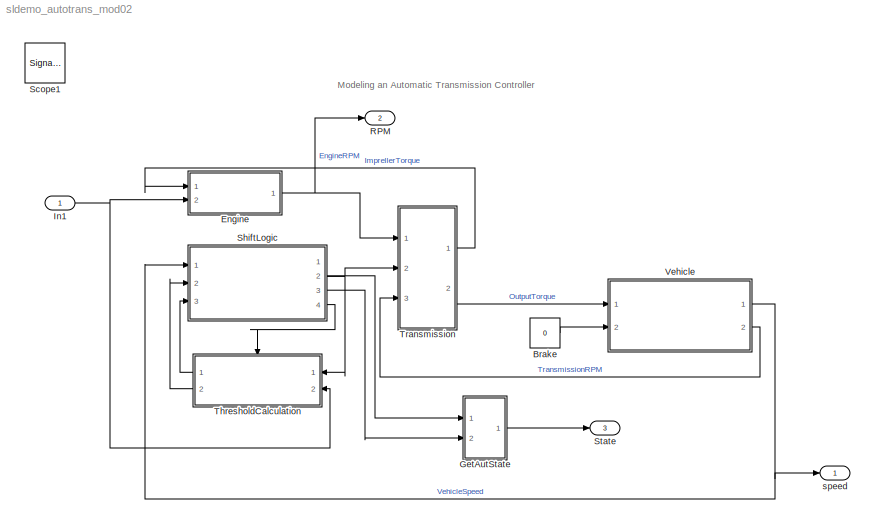
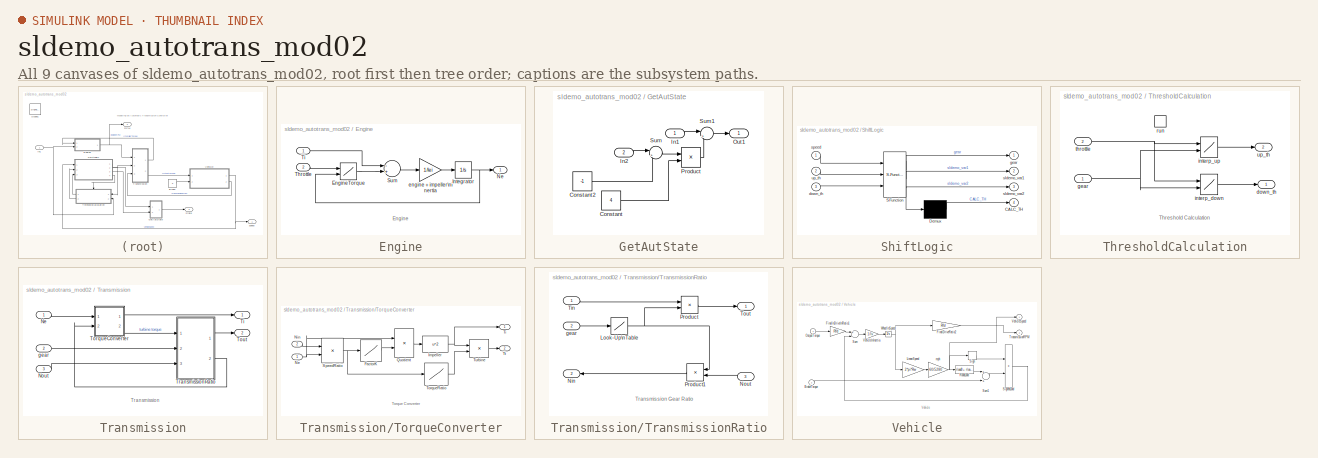
[diagram: thumbnail index - all 9 canvases of the model, root first then tree order]
MODEL sldemo_autotrans_mod02
KIND model
WORKSPACE source: MATLAB code (in-file)
WORKSPACE code: load sldemo_autotrans_data; %load initial conditions and other necessary data
BLOCK [Constant] Brake
  SID = 83
  Value = 0
BLOCK [SubSystem] Engine
  FunctionWithSeparateData = off
  MaskHideContents = off
  MinAlgLoopOccurrences = off
  Opaque = off
  Ports = [2, 1]
  PropExecContextOutsideSubsystem = off
  RTWSystemCode = Auto
  RequestExecContextInheritance = off
  SID = 1
BLOCK [Lookup2D] Engine/EngineTorque
  ColumnIndex = nevec
  RowIndex = thvec
  SID = 4
  SaturateOnIntegerOverflow = off
  Table = emap
BLOCK [Integrator] Engine/Integrator
  InitialCondition = 1000
  LimitOutput = on
  LowerSaturationLimit = 600
  Ports = [1, 1]
  SID = 5
  UpperSaturationLimit = 6000
  ZeroCross = off
BLOCK [Outport] Engine/Ne
  IconDisplay = Port number
  InitialOutput = 0
  SID = 8
BLOCK [Sum] Engine/Sum
  Inputs = -+
  Ports = [2, 1]
  SID = 6
BLOCK [Inport] Engine/Throttle
  IconDisplay = Port number
  Port = 2
  SID = 3
BLOCK [Inport] Engine/Ti
  IconDisplay = Port number
  SID = 2
BLOCK [Gain] Engine/engine + impeller\ninertia
  Gain = 1/Iei
  SID = 7
BLOCK [SubSystem] GetAutState
  FunctionWithSeparateData = off
  MaskHideContents = off
  MinAlgLoopOccurrences = off
  Opaque = off
  Ports = [2, 1]
  PropExecContextOutsideSubsystem = off
  RTWSystemCode = Auto
  RequestExecContextInheritance = off
  SID = 92
BLOCK [Constant] GetAutState/Constant
  SID = 86
  Value = 4
BLOCK [Constant] GetAutState/Constant2
  SID = 88
  Value = -1
BLOCK [Inport] GetAutState/In1
  IconDisplay = Port number
  SID = 93
BLOCK [Inport] GetAutState/In2
  IconDisplay = Port number
  Port = 2
  SID = 95
BLOCK [Outport] GetAutState/Out1
  IconDisplay = Port number
  SID = 94
BLOCK [Product] GetAutState/Product
  InputSameDT = off
  OutDataTypeStr = Inherit: Inherit via internal rule
  Ports = [2, 1]
  SID = 91
  SaturateOnIntegerOverflow = off
BLOCK [Sum] GetAutState/Sum
  IconShape = round
  InputSameDT = off
  Inputs = |++
  OutDataTypeStr = Inherit: Inherit via internal rule
  Ports = [2, 1]
  SID = 89
  SaturateOnIntegerOverflow = off
BLOCK [Sum] GetAutState/Sum1
  IconShape = round
  InputSameDT = off
  Inputs = |++
  OutDataTypeStr = Inherit: Inherit via internal rule
  Ports = [2, 1]
  SID = 90
  SaturateOnIntegerOverflow = off
BLOCK [Inport] In1
  IconDisplay = Port number
  SID = 84
BLOCK [Outport] RPM
  IconDisplay = Port number
  Port = 2
  SID = 79
BLOCK [SignalViewerScope] Scope1
  DataFormat = Array
  IOType = viewer
  MaxDataPoints = 7500
  NumInputPorts = 1
  Ports = []
  RefreshTime = 0.035000
  SID = 67
  ShowDataMarkers = off
  ShowLegends = off
  TimeRange = 30
  YMax = 5000
  YMin = 1000
BLOCK [SubSystem] ShiftLogic
  FunctionWithSeparateData = off
  MaskDescription = Stateflow diagram
  MaskDisplay = plot(sf('Private','sfblk','xIcon'),sf('Private','sfblk','yIcon'));text(0.5,0,sf('Private', 'sfblk', 'tIcon'),'HorizontalAl','Center','VerticalAl','Bottom');
  MaskHideContents = off
  MaskIconFrame = off
  MaskIconOpaque = off
  MaskIconRotate = none
  MaskIconUnits = autoscale
  MaskPortRotate = default
  MaskSelfModifiable = on
  MaskType = Stateflow
  MinAlgLoopOccurrences = off
  Opaque = off
  PermitHierarchicalResolution = ExplicitOnly
  Ports = [3, 4]
  PropExecContextOutsideSubsystem = off
  RTWSystemCode = Auto
  RequestExecContextInheritance = off
  SID = 16
  TreatAsAtomicUnit = on
BLOCK [Demux] ShiftLogic/ Demux 
  Outputs = 1
  Ports = [1, 1]
  SID = 16::13
BLOCK [S-Function] ShiftLogic/ SFunction 
  EnableBusSupport = on
  FunctionName = sf_sfun
  Parameters = TWAIT
  PortCounts = [3 4]
  Ports = [3, 4]
  SID = 16::12
  Tag = Stateflow S-Function sldemo_autotrans_mod02 1
BLOCK [Outport] ShiftLogic/CALC_TH
  IconDisplay = Port number
  Port = 4
  SID = 16::7
BLOCK [Inport] ShiftLogic/down_th
  IconDisplay = Port number
  Port = 3
  SID = 16::3
BLOCK [Outport] ShiftLogic/gear
  IconDisplay = Port number
  SID = 16::6
BLOCK [Outport] ShiftLogic/sldemo_var1
  IconDisplay = Port number
  Port = 2
  SID = 16::16
BLOCK [Outport] ShiftLogic/sldemo_var2
  IconDisplay = Port number
  Port = 3
  SID = 16::17
BLOCK [Inport] ShiftLogic/speed
  IconDisplay = Port number
  SID = 16::1
BLOCK [Inport] ShiftLogic/up_th
  IconDisplay = Port number
  Port = 2
  SID = 16::2
BLOCK [Outport] State
  IconDisplay = Port number
  Port = 3
  SID = 81
BLOCK [SubSystem] ThresholdCalculation
  FunctionWithSeparateData = off
  MaskHideContents = off
  MinAlgLoopOccurrences = off
  Opaque = off
  Ports = [2, 2, 0, 1]
  PropExecContextOutsideSubsystem = off
  RTWSystemCode = Auto
  RequestExecContextInheritance = off
  SID = 17
  TreatAsAtomicUnit = on
BLOCK [Outport] ThresholdCalculation/down_th
  IconDisplay = Port number
  SID = 23
BLOCK [Inport] ThresholdCalculation/gear
  IconDisplay = Port number
  SID = 18
BLOCK [Lookup2D] ThresholdCalculation/interp_down
  ColumnIndex = [1:4]
  InputSameDT = off
  LockScale = on
  OutDataTypeStr = double
  RowIndex = downth
  SID = 21
  SaturateOnIntegerOverflow = off
  Table = downtab
BLOCK [Lookup2D] ThresholdCalculation/interp_up
  ColumnIndex = [1:4]
  InputSameDT = off
  LockScale = on
  OutDataTypeStr = double
  RowIndex = upth
  SID = 22
  SaturateOnIntegerOverflow = off
  Table = uptab
BLOCK [TriggerPort] ThresholdCalculation/run
  Ports = []
  SID = 20
  TriggerType = function-call
  ZeroCross = off
BLOCK [Inport] ThresholdCalculation/throttle
  IconDisplay = Port number
  Port = 2
  SID = 19
BLOCK [Outport] ThresholdCalculation/up_th
  IconDisplay = Port number
  Port = 2
  SID = 24
BLOCK [SubSystem] Transmission
  FunctionWithSeparateData = off
  MaskHideContents = off
  MinAlgLoopOccurrences = off
  Opaque = off
  Ports = [3, 2]
  PropExecContextOutsideSubsystem = off
  RTWSystemCode = Auto
  RequestExecContextInheritance = off
  SID = 25
BLOCK [Inport] Transmission/Ne
  IconDisplay = Port number
  SID = 26
BLOCK [Inport] Transmission/Nout
  IconDisplay = Port number
  Port = 3
  SID = 28
BLOCK [Outport] Transmission/Ti
  IconDisplay = Port number
  InitialOutput = 0
  SID = 49
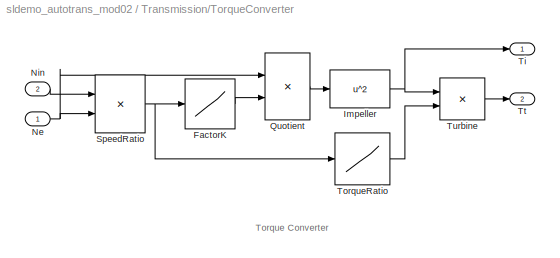
BLOCK [SubSystem] Transmission/TorqueConverter
  FunctionWithSeparateData = off
  MaskCallbackString = ||
  MaskDescription = torque converter
  MaskDisplay = plot([cos([90:10:450]*pi/180),.63*cos([90:10:450]*pi/180),.63*cos([90:10:240]*pi/180),cos([240:10:300]*pi/180),.63*cos([300]*pi/180)],[sin([90:10:450]*pi/180),.63*sin([90:10:450]*pi/180)+.1,.63*sin([90:10:240]*pi/180)+.1,sin([240:10:300]*pi/180),.63*sin([300]*pi/180)+.1])
  MaskEnableString = on,on,on
  MaskHelp = Torque converter input and output torques are computed as a function of the input and output speeds
  MaskHideContents = off
  MaskIconFrame = on
  MaskIconOpaque = on
  MaskIconRotate = none
  MaskIconUnits = autoscale
  MaskPortRotate = default
  MaskPromptString = speed ratio | K factor | torque ratio
  MaskStyleString = edit,edit,edit
  MaskToolTipString = on,on,on
  MaskTunableValueString = on,on,on
  MaskType = torque converter
  MaskValueString = converter_data(:,1)|converter_data(:,2)|converter_data(:,3)
  MaskVariables = speedratio=@1;Kfactor=@2;Torkratio=@3;
  MaskVisibilityString = on,on,on
  MinAlgLoopOccurrences = off
  Opaque = off
  Ports = [2, 2]
  PropExecContextOutsideSubsystem = off
  RTWSystemCode = Auto
  RequestExecContextInheritance = off
  SID = 29
  ShowPortLabels = none
BLOCK [Lookup] Transmission/TorqueConverter/FactorK
  InputValues = speedratio
  SID = 32
  Table = Kfactor
BLOCK [Fcn] Transmission/TorqueConverter/Impeller
  Expr = u^2
  SID = 33
BLOCK [Inport] Transmission/TorqueConverter/Ne
  IconDisplay = Port number
  SID = 30
BLOCK [Inport] Transmission/TorqueConverter/Nin
  IconDisplay = Port number
  Port = 2
  SID = 31
BLOCK [Product] Transmission/TorqueConverter/Quotient
  Inputs = */
  Ports = [2, 1]
  RndMeth = Floor
  SID = 34
BLOCK [Product] Transmission/TorqueConverter/SpeedRatio
  Inputs = */
  Ports = [2, 1]
  RndMeth = Floor
  SID = 35
BLOCK [Outport] Transmission/TorqueConverter/Ti
  IconDisplay = Port number
  InitialOutput = 0
  SID = 38
BLOCK [Lookup] Transmission/TorqueConverter/TorqueRatio
  InputValues = speedratio
  SID = 36
  Table = Torkratio
BLOCK [Outport] Transmission/TorqueConverter/Tt
  IconDisplay = Port number
  InitialOutput = 0
  Port = 2
  SID = 39
BLOCK [Product] Transmission/TorqueConverter/Turbine
  Ports = [2, 1]
  RndMeth = Floor
  SID = 37
BLOCK [Outport] Transmission/Tout
  IconDisplay = Port number
  InitialOutput = 0
  Port = 2
  SID = 50
BLOCK [SubSystem] Transmission/TransmissionRatio
  FunctionWithSeparateData = off
  MaskHideContents = off
  MinAlgLoopOccurrences = off
  Opaque = off
  Ports = [3, 2]
  PropExecContextOutsideSubsystem = off
  RTWSystemCode = Auto
  RequestExecContextInheritance = off
  SID = 40
BLOCK [Lookup] Transmission/TransmissionRatio/Look-Up\nTable
  InputValues = [1 2 3 4]
  LockScale = on
  OutDataTypeStr = double
  SID = 44
  Table = [2.393 1.450 1.000 0.677]
BLOCK [Outport] Transmission/TransmissionRatio/Nin
  IconDisplay = Port number
  InitialOutput = 0
  Port = 2
  SID = 48
BLOCK [Inport] Transmission/TransmissionRatio/Nout
  IconDisplay = Port number
  Port = 3
  SID = 43
BLOCK [Product] Transmission/TransmissionRatio/Product
  Ports = [2, 1]
  RndMeth = Floor
  SID = 45
BLOCK [Product] Transmission/TransmissionRatio/Product1
  Ports = [2, 1]
  RndMeth = Floor
  SID = 46
BLOCK [Inport] Transmission/TransmissionRatio/Tin
  IconDisplay = Port number
  SID = 41
BLOCK [Outport] Transmission/TransmissionRatio/Tout
  IconDisplay = Port number
  InitialOutput = 0
  SID = 47
BLOCK [Inport] Transmission/TransmissionRatio/gear
  IconDisplay = Port number
  Port = 2
  SID = 42
BLOCK [Inport] Transmission/gear
  IconDisplay = Port number
  Port = 2
  SID = 27
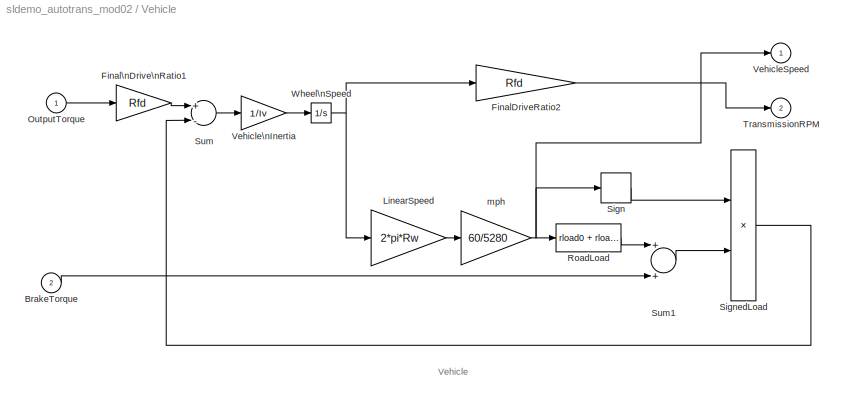
BLOCK [SubSystem] Vehicle
  FunctionWithSeparateData = off
  MaskCallbackString = |||||
  MaskDescription = vehicle dynamics: torque input from trans., outputs are input speed (transmission output) and vehicle speed
  MaskDisplay = image(imread([matlabroot,'/toolbox/simulink/simdemos/automotive/html/NSX_3Colors.jpg']))
  MaskEnableString = on,on,on,on,on,on
  MaskHideContents = off
  MaskIconFrame = on
  MaskIconOpaque = on
  MaskIconRotate = port
  MaskIconUnits = autoscale
  MaskPortRotate = default
  MaskPromptString = final drive ratio | drag friction at wheels | aerodynamic drag | wheel radius | vehicle inertia | initial transmission output speed
  MaskStyleString = edit,edit,edit,edit,edit,edit
  MaskToolTipString = on,on,on,on,on,on
  MaskTunableValueString = on,on,on,on,on,on
  MaskType = vehicle model
  MaskValueString = vehicledata(1)|vehicledata(2)|vehicledata(3)|vehicledata(4)|vehicledata(5)|vehicledata(6)/vehicledata(4)*vehicledata(1)
  MaskVariables = Rfd=@1;rload0=@2;rload2=@3;Rw=@4;Iv=@5;N20=@6;
  MaskVisibilityString = on,on,on,on,on,on
  MinAlgLoopOccurrences = off
  Opaque = off
  Ports = [2, 2]
  PropExecContextOutsideSubsystem = off
  RTWSystemCode = Auto
  RequestExecContextInheritance = off
  SID = 51
  ShowPortLabels = none
BLOCK [Inport] Vehicle/BrakeTorque
  IconDisplay = Port number
  Port = 2
  SID = 53
BLOCK [Gain] Vehicle/FinalDriveRatio2
  Gain = Rfd
  SID = 55
BLOCK [Gain] Vehicle/Final\nDrive\nRatio1
  Gain = Rfd
  SID = 54
BLOCK [Gain] Vehicle/LinearSpeed
  Gain = 2*pi*Rw
  SID = 56
BLOCK [Inport] Vehicle/OutputTorque
  IconDisplay = Port number
  SID = 52
BLOCK [Fcn] Vehicle/RoadLoad
  Expr = rload0 + rload2*u^2
  SID = 57
BLOCK [Signum] Vehicle/Sign
  SID = 58
BLOCK [Product] Vehicle/SignedLoad
  Ports = [2, 1]
  RndMeth = Floor
  SID = 59
BLOCK [Sum] Vehicle/Sum
  Inputs = +-
  Ports = [2, 1]
  SID = 60
BLOCK [Sum] Vehicle/Sum1
  Ports = [2, 1]
  SID = 61
BLOCK [Outport] Vehicle/TransmissionRPM
  IconDisplay = Port number
  InitialOutput = 0
  Port = 2
  SID = 66
BLOCK [Outport] Vehicle/VehicleSpeed
  IconDisplay = Port number
  InitialOutput = 0
  SID = 65
BLOCK [Gain] Vehicle/Vehicle\nInertia
  Gain = 1/Iv
  SID = 62
BLOCK [Integrator] Vehicle/Wheel\nSpeed
  InitialCondition = N20/Rfd
  Ports = [1, 1]
  SID = 63
  ZeroCross = off
BLOCK [Gain] Vehicle/mph
  Gain = 60/5280
  SID = 64
BLOCK [Outport] speed
  IconDisplay = Port number
  SID = 80
ANNOTATION (root): Modeling an Automatic Transmission Controller
ANNOTATION Engine: Engine
ANNOTATION ThresholdCalculation: Threshold Calculation
ANNOTATION Transmission: Transmission
ANNOTATION Transmission/TorqueConverter: Torque Converter
ANNOTATION Transmission/TransmissionRatio: Transmission Gear Ratio
ANNOTATION Vehicle: Vehicle
LINE Brake:1 -> Vehicle:2
LINE Engine/EngineTorque:1 -> Engine/Sum:2
NET Engine/Integrator:1 -> Engine/EngineTorque:2, Engine/Ne:1
LINE Engine/Sum:1 -> Engine/engine + impeller\ninertia:1
LINE Engine/Throttle:1 -> Engine/EngineTorque:1
LINE Engine/Ti:1 -> Engine/Sum:1
LINE Engine/engine + impeller\ninertia:1 -> Engine/Integrator:1
NET Engine:1 -> RPM:1, Transmission:1
LINE GetAutState/Constant2:1 -> GetAutState/Sum:2
LINE GetAutState/Constant:1 -> GetAutState/Product:2
LINE GetAutState/In1:1 -> GetAutState/Sum1:1
LINE GetAutState/In2:1 -> GetAutState/Sum:1
LINE GetAutState/Product:1 -> GetAutState/Sum1:2
LINE GetAutState/Sum1:1 -> GetAutState/Out1:1
LINE GetAutState/Sum:1 -> GetAutState/Product:1
LINE GetAutState:1 -> State:1
NET In1:1 -> Engine:2, ThresholdCalculation:2
LINE ShiftLogic/ Demux :1 -> ShiftLogic/CALC_TH:1
LINE ShiftLogic/ SFunction :1 -> ShiftLogic/ Demux :1
LINE ShiftLogic/ SFunction :2 -> ShiftLogic/gear:1
LINE ShiftLogic/ SFunction :3 -> ShiftLogic/sldemo_var1:1
LINE ShiftLogic/ SFunction :4 -> ShiftLogic/sldemo_var2:1
LINE ShiftLogic/down_th:1 -> ShiftLogic/ SFunction :3
LINE ShiftLogic/speed:1 -> ShiftLogic/ SFunction :1
LINE ShiftLogic/up_th:1 -> ShiftLogic/ SFunction :2
NET ShiftLogic:1 -> ThresholdCalculation:1, Transmission:2
LINE ShiftLogic:2 -> GetAutState:1
LINE ShiftLogic:3 -> GetAutState:2
LINE ShiftLogic:4 -> ThresholdCalculation:trigger
NET ThresholdCalculation/gear:1 -> ThresholdCalculation/interp_down:2, ThresholdCalculation/interp_up:2
LINE ThresholdCalculation/interp_down:1 -> ThresholdCalculation/down_th:1
LINE ThresholdCalculation/interp_up:1 -> ThresholdCalculation/up_th:1
NET ThresholdCalculation/throttle:1 -> ThresholdCalculation/interp_down:1, ThresholdCalculation/interp_up:1
LINE ThresholdCalculation:1 -> ShiftLogic:3
LINE ThresholdCalculation:2 -> ShiftLogic:2
LINE Transmission/Ne:1 -> Transmission/TorqueConverter:1
LINE Transmission/Nout:1 -> Transmission/TransmissionRatio:3
LINE Transmission/TorqueConverter/FactorK:1 -> Transmission/TorqueConverter/Quotient:2
NET Transmission/TorqueConverter/Impeller:1 -> Transmission/TorqueConverter/Ti:1, Transmission/TorqueConverter/Turbine:1
NET Transmission/TorqueConverter/Ne:1 -> Transmission/TorqueConverter/Quotient:1, Transmission/TorqueConverter/SpeedRatio:2
LINE Transmission/TorqueConverter/Nin:1 -> Transmission/TorqueConverter/SpeedRatio:1
LINE Transmission/TorqueConverter/Quotient:1 -> Transmission/TorqueConverter/Impeller:1
NET Transmission/TorqueConverter/SpeedRatio:1 -> Transmission/TorqueConverter/FactorK:1, Transmission/TorqueConverter/TorqueRatio:1
LINE Transmission/TorqueConverter/TorqueRatio:1 -> Transmission/TorqueConverter/Turbine:2
LINE Transmission/TorqueConverter/Turbine:1 -> Transmission/TorqueConverter/Tt:1
LINE Transmission/TorqueConverter:1 -> Transmission/Ti:1
LINE Transmission/TorqueConverter:2 -> Transmission/TransmissionRatio:1
NET Transmission/TransmissionRatio/Look-Up\nTable:1 -> Transmission/TransmissionRatio/Product1:1, Transmission/TransmissionRatio/Product:2
LINE Transmission/TransmissionRatio/Nout:1 -> Transmission/TransmissionRatio/Product1:2
LINE Transmission/TransmissionRatio/Product1:1 -> Transmission/TransmissionRatio/Nin:1
LINE Transmission/TransmissionRatio/Product:1 -> Transmission/TransmissionRatio/Tout:1
LINE Transmission/TransmissionRatio/Tin:1 -> Transmission/TransmissionRatio/Product:1
LINE Transmission/TransmissionRatio/gear:1 -> Transmission/TransmissionRatio/Look-Up\nTable:1
LINE Transmission/TransmissionRatio:1 -> Transmission/Tout:1
LINE Transmission/TransmissionRatio:2 -> Transmission/TorqueConverter:2
LINE Transmission/gear:1 -> Transmission/TransmissionRatio:2
LINE Transmission:1 -> Engine:1
LINE Transmission:2 -> Vehicle:1
LINE Vehicle/BrakeTorque:1 -> Vehicle/Sum1:2
LINE Vehicle/FinalDriveRatio2:1 -> Vehicle/TransmissionRPM:1
LINE Vehicle/Final\nDrive\nRatio1:1 -> Vehicle/Sum:1
LINE Vehicle/LinearSpeed:1 -> Vehicle/mph:1
LINE Vehicle/OutputTorque:1 -> Vehicle/Final\nDrive\nRatio1:1
LINE Vehicle/RoadLoad:1 -> Vehicle/Sum1:1
LINE Vehicle/Sign:1 -> Vehicle/SignedLoad:1
LINE Vehicle/SignedLoad:1 -> Vehicle/Sum:2
LINE Vehicle/Sum1:1 -> Vehicle/SignedLoad:2
LINE Vehicle/Sum:1 -> Vehicle/Vehicle\nInertia:1
LINE Vehicle/Vehicle\nInertia:1 -> Vehicle/Wheel\nSpeed:1
NET Vehicle/Wheel\nSpeed:1 -> Vehicle/FinalDriveRatio2:1, Vehicle/LinearSpeed:1
NET Vehicle/mph:1 -> Vehicle/RoadLoad:1, Vehicle/Sign:1, Vehicle/VehicleSpeed:1
NET Vehicle:1 -> ShiftLogic:1, speed:1
LINE Vehicle:2 -> Transmission:3
note: NET lines group one-source signal fan-out (src -> all destinations, sorted); 1:1 wires keep LINE
CHART ShiftLogic states=9 transitions=14
  STATE_LABEL 'downshifting\\nsldemo_var2 = 2;'
  STATE_LABEL 'gear_state'
  STATE_LABEL 'fourth\\nentry: gear = 4;\\nsldemo_var1 = 4;'
  STATE_LABEL 'second\\nentry: gear = 2;\\nsldemo_var1 = 2;'
  STATE_LABEL 'third\\nentry: gear = 3;\\nsldemo_var1 = 3;'
  STATE_LABEL 'first\\nentry: gear = 1;\\nsldemo_var1 = 1;'
  STATE_LABEL 'selection_state\\nduring: CALC_TH;'
  STATE_LABEL 'upshifting\\nsldemo_var2 = 3;'
  STATE_LABEL 'steady_state\\nsldemo_var2 = 1;'
